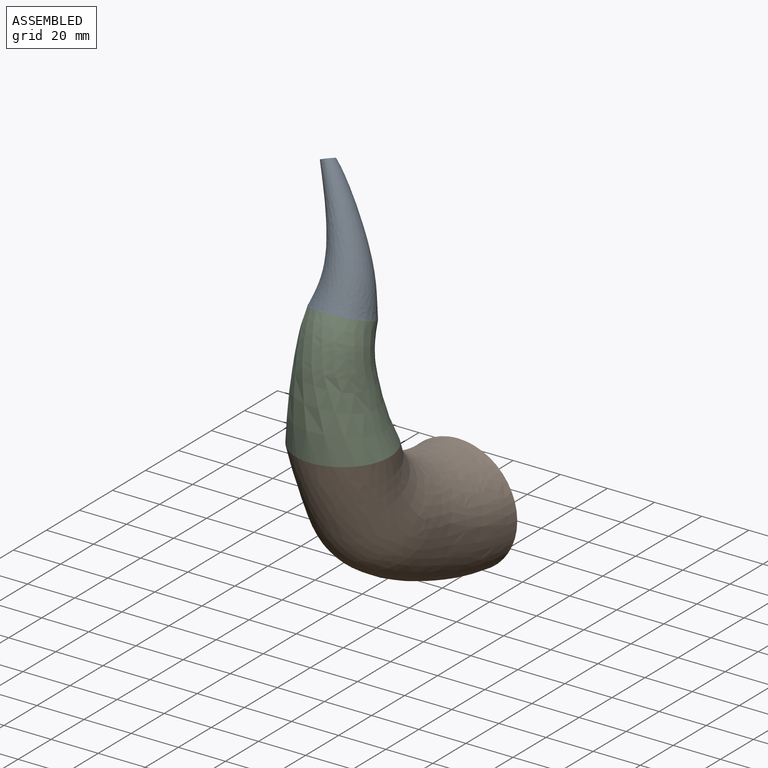
[diagram: assembled view]
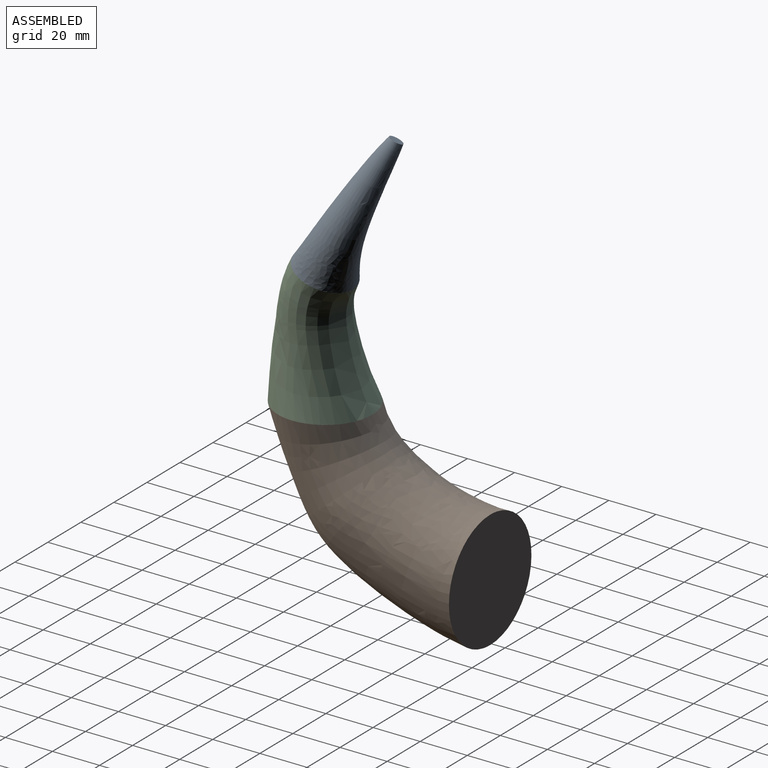
[diagram: assembled view, second angle]
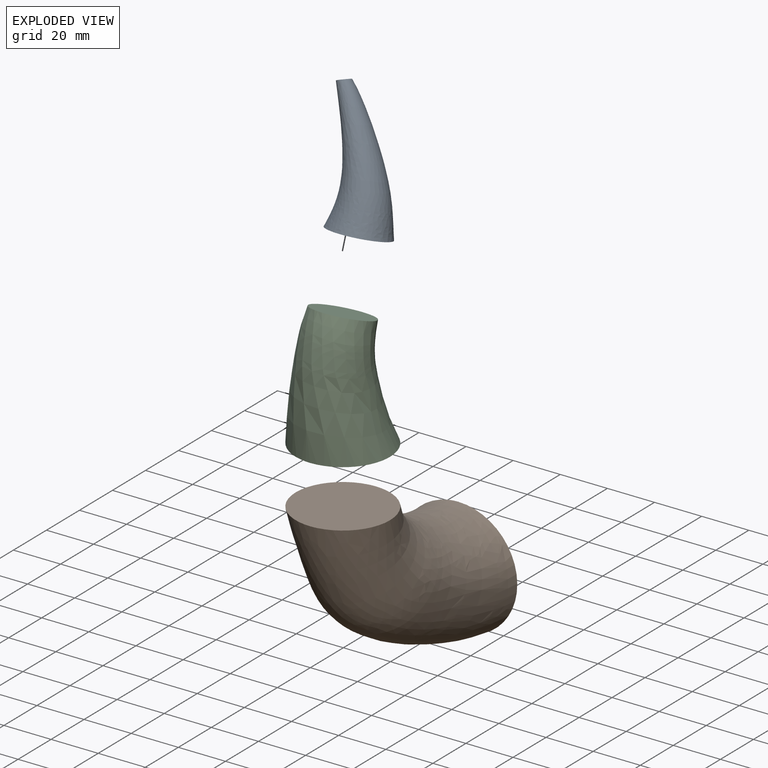
[diagram: exploded view]
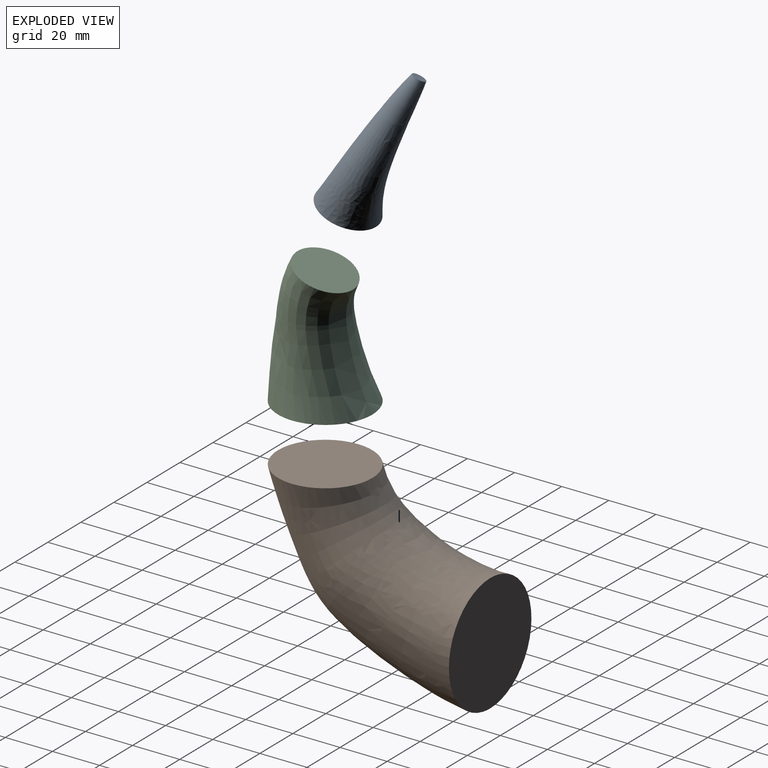
[diagram: exploded view, second angle]
ASSEMBLY  parts=3 mates=2
PART A: 3 faces, bbox 25x33.6x51.5 mm
  f0: plane 5.69x5.34mm, normal (0,-0.34,0.94), area 25.4mm2, adj f2
  f1: plane 25x25mm, normal (0,0,-1), area 490.8mm2, adj f2
  f2: bspline ~51.52x33.57mm, area 2519.2mm2, adj f0,f1
PART B: 3 faces, bbox 50x90x75 mm
  f0: plane 40x40mm, normal (0,0,1), area 1256.6mm2, adj f2
  f1: plane 50x50mm, normal (0,1,0), area 1963.5mm2, adj f2
  f2: bspline ~90x75mm, area 12803.8mm2, adj f0,f1
PART C: 3 faces, bbox 41.2x55.5x41.3 mm
  f0: plane 41.21x41.2mm, normal (0,-1,0), area 1256.6mm2, adj f2
  f1: plane 26.08x24.57mm, normal (0,0.94,-0.34), area 490.9mm2, adj f2
  f2: bspline ~54.28x40.16mm, area 5009.8mm2, adj f0,f1
PLACE A rot(axis=(-0.17,-0.17,-0.97),91.7deg) t=(-50.88,-61.9,76.22)mm
PLACE B t=(-50.88,8.11,-23.78)mm
PLACE C rot(axis=(1,0,0),90deg) t=(-50.88,-61.9,76.22)mm
MATE fastened C.f0 <-> B.f0  axis (0,0,-1) through (-50.88,-61.9,26.22)mm
MATE fastened A.f1 <-> C.f1  axis (0,-0.34,-0.94) through (-50.88,-61.9,76.22)mm
